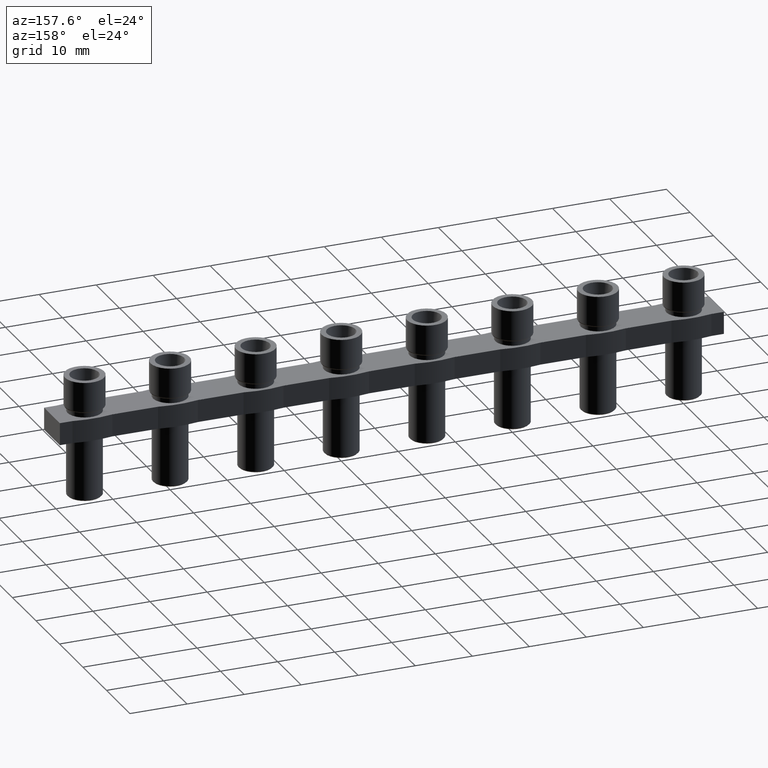
[diagram: clean part render]
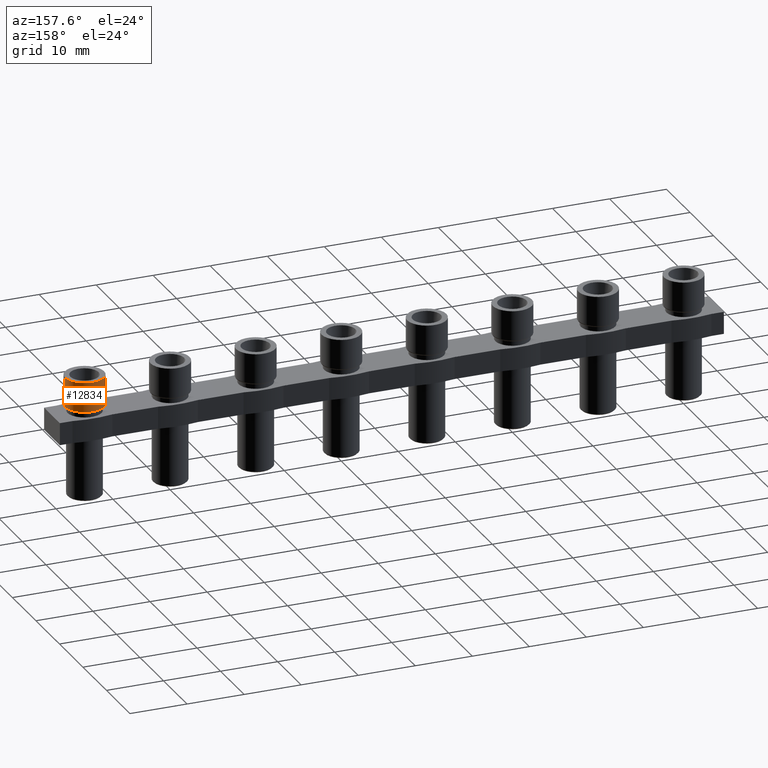
[diagram: same view with one face highlighted and labeled with its STEP entity id]
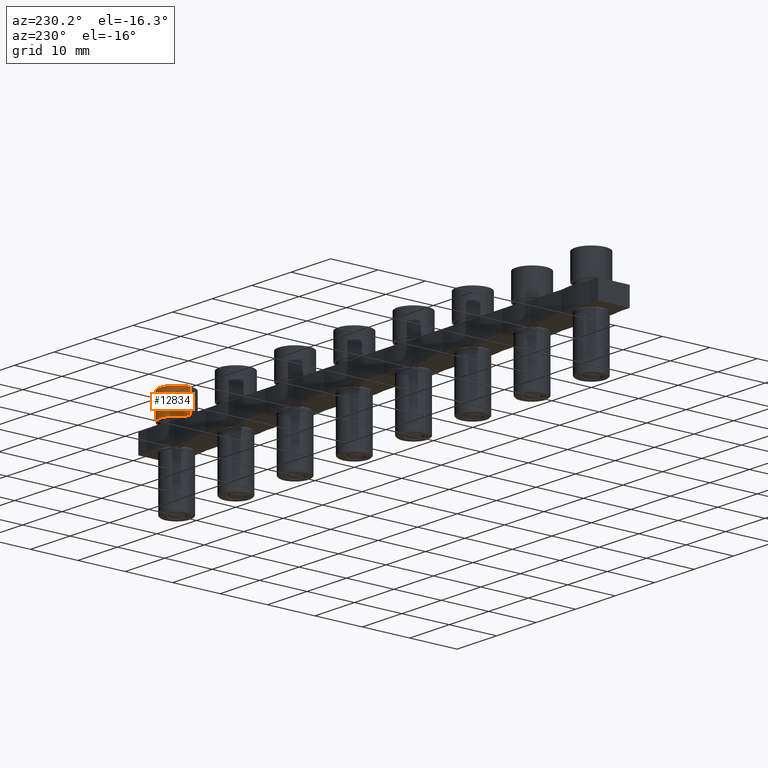
[diagram: same view with one face highlighted and labeled with its STEP entity id]
A machine part, auxiliary view. The second image highlights one B-rep face of the part: STEP entity #12834.
A second angle (auxiliary view) of the same face is appended — the face is thin or edge-on in the first view.
In plain terms, the highlighted cylindrical surface (edge-blend (fillet) strip) has radius 3.425 mm, axis along (0, 0, -1).
Its self-contained STEP definition (entity closure, byte-faithful):
#153 = EDGE_CURVE ( 'NONE', #2498, #2534, #3626, .T. ) ;
#168 = EDGE_CURVE ( 'NONE', #2534, #2434, #9974, .T. ) ;
#204 = EDGE_CURVE ( 'NONE', #2547, #2434, #3951, .T. ) ;
#2434 = VERTEX_POINT ( 'NONE', #8923 ) ;
#2498 = VERTEX_POINT ( 'NONE', #8959 ) ;
#2534 = VERTEX_POINT ( 'NONE', #9006 ) ;
#2547 = VERTEX_POINT ( 'NONE', #9025 ) ;
#3049 = EDGE_LOOP ( 'NONE', ( #4228, #4236, #3244, #3241 ) ) ;
#3241 = ORIENTED_EDGE ( 'NONE', *, *, #168, .T. ) ;
#3244 = ORIENTED_EDGE ( 'NONE', *, *, #153, .T. ) ;
#3592 = CARTESIAN_POINT ( 'NONE',  ( 108.4250000000016500, 3.661164680073737600E-013, 5.400000000000000400 ) ) ;
#3594 = DIRECTION ( 'NONE',  ( 0.0000000000000000000, 0.0000000000000000000, -1.000000000000000000 ) ) ;
#3626 = LINE ( 'NONE', #3592, #9961 ) ;
#3687 = DIRECTION ( 'NONE',  ( 0.0000000000000000000, 0.0000000000000000000, 1.000000000000000000 ) ) ;
#3694 = CARTESIAN_POINT ( 'NONE',  ( 105.0000000000016500, 3.654728985938502800E-013, 0.1999999999999996500 ) ) ;
#3703 = DIRECTION ( 'NONE',  ( -1.000000000000000000, -2.491358183583763700E-016, 0.0000000000000000000 ) ) ;
#3951 = LINE ( 'NONE', #3971, #10051 ) ;
#3971 = CARTESIAN_POINT ( 'NONE',  ( 101.5750000000016500, 3.639904461229109700E-013, 5.400000000000000400 ) ) ;
#3983 = DIRECTION ( 'NONE',  ( 0.0000000000000000000, 0.0000000000000000000, -1.000000000000000000 ) ) ;
#4228 = ORIENTED_EDGE ( 'NONE', *, *, #204, .F. ) ;
#4236 = ORIENTED_EDGE ( 'NONE', *, *, #12258, .F. ) ;
#6046 = FACE_OUTER_BOUND ( 'NONE', #3049, .T. ) ;
#6047 = CARTESIAN_POINT ( 'NONE',  ( 105.0000000000016500, 3.652631778294963100E-013, 5.400000000000000400 ) ) ;
#6048 = DIRECTION ( 'NONE',  ( 1.000000000000000000, 2.491358183583763700E-016, 0.0000000000000000000 ) ) ;
#6049 = CYLINDRICAL_SURFACE ( 'NONE', #11982, 3.424999999999997600 ) ;
#6061 = DIRECTION ( 'NONE',  ( 0.0000000000000000000, 0.0000000000000000000, -1.000000000000000000 ) ) ;
#8923 = CARTESIAN_POINT ( 'NONE',  ( 101.5750000000016500, 3.639904461229109700E-013, 0.1999999999999996500 ) ) ;
#8959 = CARTESIAN_POINT ( 'NONE',  ( 108.4250000000016500, 3.661164680073737600E-013, 5.400000000000000400 ) ) ;
#9006 = CARTESIAN_POINT ( 'NONE',  ( 108.4250000000016500, 3.661164680073737600E-013, 0.1999999999999996500 ) ) ;
#9025 = CARTESIAN_POINT ( 'NONE',  ( 101.5750000000016500, 3.639904461229109700E-013, 5.400000000000000400 ) ) ;
#9203 = DIRECTION ( 'NONE',  ( -0.0000000000000000000, -0.0000000000000000000, 1.000000000000000000 ) ) ;
#9229 = DIRECTION ( 'NONE',  ( 1.000000000000000000, 2.491358183583763700E-016, 0.0000000000000000000 ) ) ;
#9240 = CARTESIAN_POINT ( 'NONE',  ( 105.0000000000016500, 3.652631778294963100E-013, 5.400000000000000400 ) ) ;
#9961 = VECTOR ( 'NONE', #3594, 1000.000000000000000 ) ;
#9974 = CIRCLE ( 'NONE', #9985, 3.424999999999997600 ) ;
#9985 = AXIS2_PLACEMENT_3D ( 'NONE', #3694, #3687, #3703 ) ;
#10051 = VECTOR ( 'NONE', #3983, 1000.000000000000000 ) ;
#10495 = CIRCLE ( 'NONE', #10557, 3.424999999999997600 ) ;
#10557 = AXIS2_PLACEMENT_3D ( 'NONE', #9240, #9203, #9229 ) ;
#11982 = AXIS2_PLACEMENT_3D ( 'NONE', #6047, #6061, #6048 ) ;
#12258 = EDGE_CURVE ( 'NONE', #2498, #2547, #10495, .T. ) ;
#12834 = ADVANCED_FACE ( 'NONE', ( #6046 ), #6049, .T. ) ;